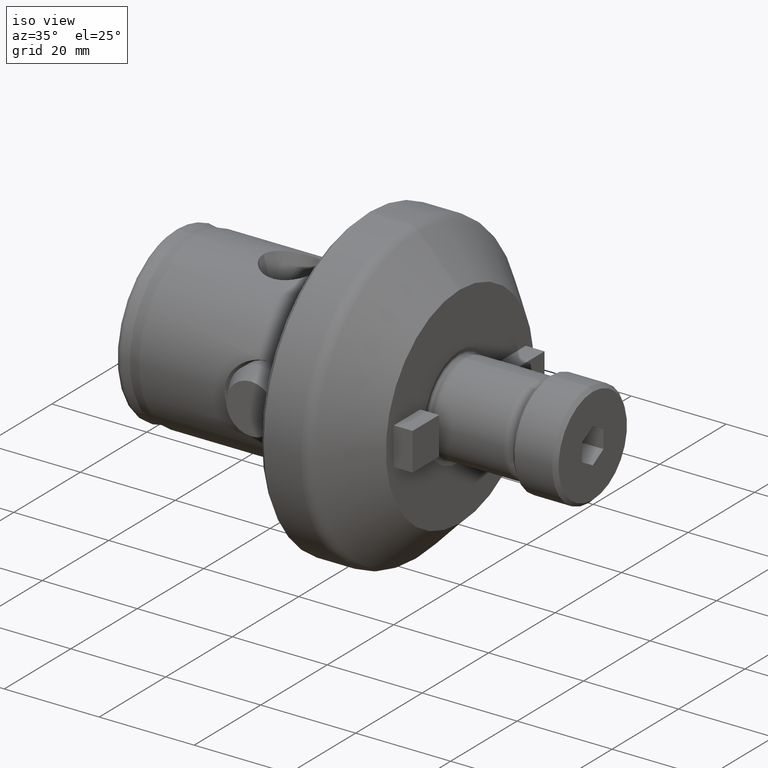
[diagram: clean part render]
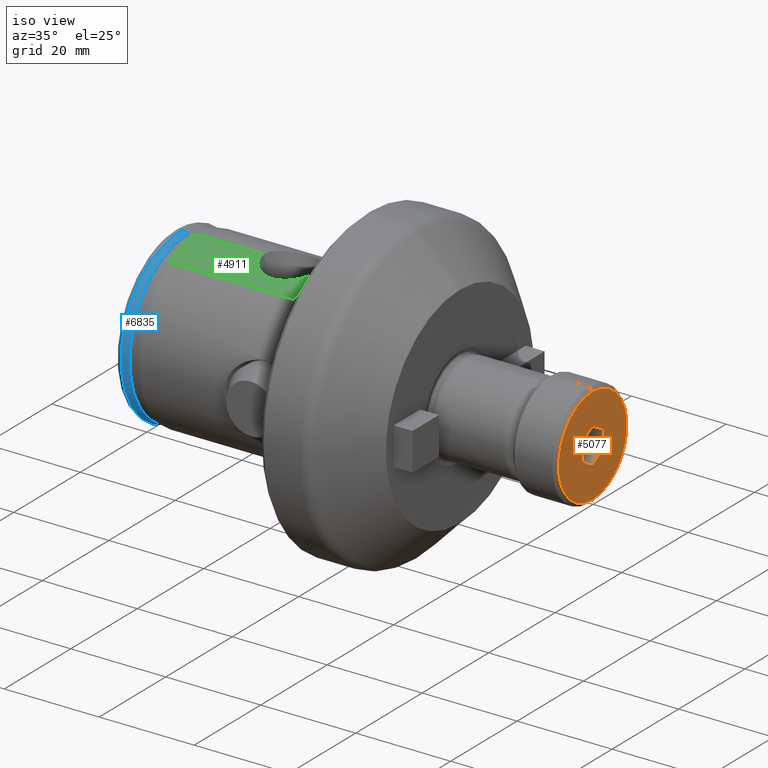
[diagram: same view with three faces highlighted in distinct colors, each labeled with its STEP entity id]
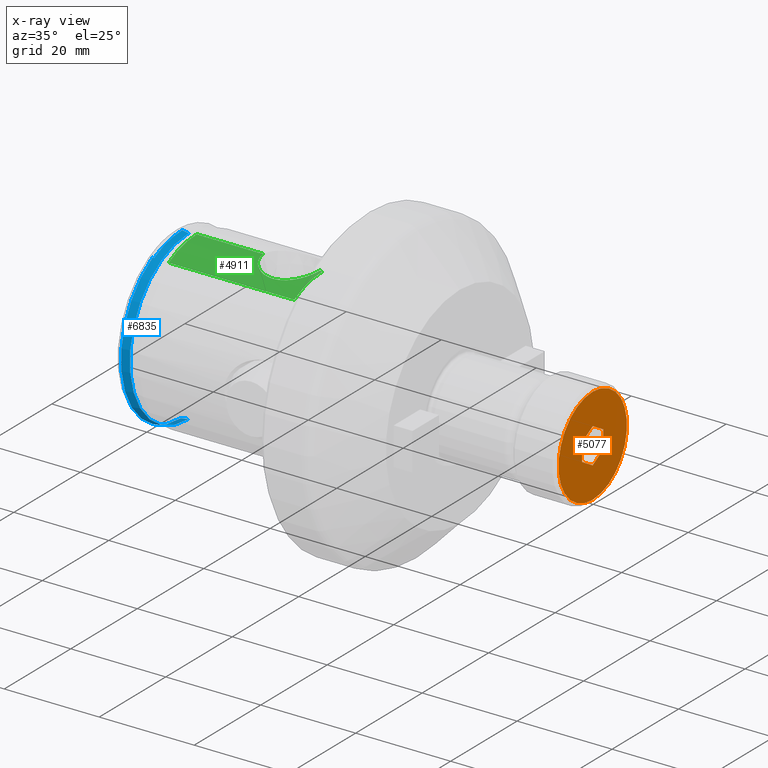
[diagram: x-ray of the same camera — body ghosted, the three highlighted faces saturated]
A machine part, iso view with three faces highlighted in distinct colors.
The next image is the same camera in x-ray (body ghosted, the three faces saturated) — at least one of them is partly hidden behind the body in this view.
Their STEP definitions:

[orange] entity #5077 — the highlighted planar face has unit normal (1, 0, -0).
#215 = ORIENTED_EDGE ( 'NONE', *, *, #6150, .F. ) ;
#280 = CARTESIAN_POINT ( 'NONE',  ( 0.0000000000000000000, -4.553649124439118600E-015, -3.739497693541208500 ) ) ;
#524 = CARTESIAN_POINT ( 'NONE',  ( 0.0000000000000000000, 3.238500000000001900, 1.869748846770605600 ) ) ;
#654 = LINE ( 'NONE', #280, #6795 ) ;
#693 = AXIS2_PLACEMENT_3D ( 'NONE', #1165, #5395, #1718 ) ;
#868 = LINE ( 'NONE', #6306, #7287 ) ;
#874 = DIRECTION ( 'NONE',  ( 0.0000000000000000000, -0.8660254037844384900, 0.5000000000000002200 ) ) ;
#937 = EDGE_LOOP ( 'NONE', ( #3235, #4430 ) ) ;
#981 = VECTOR ( 'NONE', #2906, 1000.000000000000000 ) ;
#1165 = CARTESIAN_POINT ( 'NONE',  ( 0.0000000000000000000, 0.0000000000000000000, 0.0000000000000000000 ) ) ;
#1718 = DIRECTION ( 'NONE',  ( -0.0000000000000000000, 8.326672684688664200E-016, 1.000000000000000000 ) ) ;
#1794 = LINE ( 'NONE', #524, #981 ) ;
#1819 = VERTEX_POINT ( 'NONE', #2546 ) ;
#2092 = VERTEX_POINT ( 'NONE', #5803 ) ;
#2184 = CARTESIAN_POINT ( 'NONE',  ( 0.0000000000000000000, 0.0000000000000000000, 0.0000000000000000000 ) ) ;
#2331 = CIRCLE ( 'NONE', #2741, 10.28700000000001100 ) ;
#2499 = LINE ( 'NONE', #6725, #2598 ) ;
#2546 = CARTESIAN_POINT ( 'NONE',  ( 0.0000000000000000000, -8.882894420025876500E-015, -10.28699999999999900 ) ) ;
#2598 = VECTOR ( 'NONE', #6669, 1000.000000000000000 ) ;
#2617 = DIRECTION ( 'NONE',  ( 0.0000000000000000000, 8.326672684688665200E-016, 1.000000000000000000 ) ) ;
#2741 = AXIS2_PLACEMENT_3D ( 'NONE', #2184, #5229, #6970 ) ;
#2906 = DIRECTION ( 'NONE',  ( 0.0000000000000000000, -9.992007221626401000E-016, -1.000000000000000000 ) ) ;
#2922 = DIRECTION ( 'NONE',  ( 0.0000000000000000000, -0.8660254037844386000, -0.5000000000000001100 ) ) ;
#3235 = ORIENTED_EDGE ( 'NONE', *, *, #4165, .T. ) ;
#3248 = EDGE_CURVE ( 'NONE', #6068, #2092, #2499, .T. ) ;
#3283 = VECTOR ( 'NONE', #2922, 1000.000000000000000 ) ;
#3441 = ORIENTED_EDGE ( 'NONE', *, *, #6021, .F. ) ;
#3474 = EDGE_CURVE ( 'NONE', #4946, #4737, #654, .T. ) ;
#3478 = ORIENTED_EDGE ( 'NONE', *, *, #5978, .F. ) ;
#3793 = VERTEX_POINT ( 'NONE', #7183 ) ;
#4040 = CARTESIAN_POINT ( 'NONE',  ( 0.0000000000000000000, 3.238499999999999300, -1.869748846770602500 ) ) ;
#4165 = EDGE_CURVE ( 'NONE', #1819, #3793, #5710, .T. ) ;
#4189 = CARTESIAN_POINT ( 'NONE',  ( 0.0000000000000000000, -4.553649124439118600E-015, -3.739497693541208500 ) ) ;
#4256 = CARTESIAN_POINT ( 'NONE',  ( 0.0000000000000000000, -3.238499999999997500, 1.869748846770603400 ) ) ;
#4430 = ORIENTED_EDGE ( 'NONE', *, *, #5966, .T. ) ;
#4459 = ORIENTED_EDGE ( 'NONE', *, *, #3474, .F. ) ;
#4737 = VERTEX_POINT ( 'NONE', #6845 ) ;
#4820 = DIRECTION ( 'NONE',  ( -0.0000000000000000000, 0.8660254037844384900, 0.5000000000000002200 ) ) ;
#4946 = VERTEX_POINT ( 'NONE', #4189 ) ;
#4951 = VECTOR ( 'NONE', #4820, 1000.000000000000000 ) ;
#5077 = ADVANCED_FACE ( 'NONE', ( #6357, #5256 ), #6549, .T. ) ;
#5229 = DIRECTION ( 'NONE',  ( -1.000000000000000000, 0.0000000000000000000, 0.0000000000000000000 ) ) ;
#5256 = FACE_OUTER_BOUND ( 'NONE', #937, .T. ) ;
#5394 = EDGE_LOOP ( 'NONE', ( #4459, #3441, #6597, #5931, #215, #3478 ) ) ;
#5395 = DIRECTION ( 'NONE',  ( -1.000000000000000000, 0.0000000000000000000, -0.0000000000000000000 ) ) ;
#5596 = CARTESIAN_POINT ( 'NONE',  ( 0.0000000000000000000, 0.0000000000000000000, 0.0000000000000000000 ) ) ;
#5703 = DIRECTION ( 'NONE',  ( -0.0000000000000000000, 1.054711873393897700E-015, 1.000000000000000000 ) ) ;
#5710 = CIRCLE ( 'NONE', #7048, 10.28700000000001100 ) ;
#5803 = CARTESIAN_POINT ( 'NONE',  ( 0.0000000000000000000, 3.238500000000001900, 1.869748846770605600 ) ) ;
#5900 = CARTESIAN_POINT ( 'NONE',  ( 0.0000000000000000000, 3.238499999999999300, -1.869748846770602500 ) ) ;
#5931 = ORIENTED_EDGE ( 'NONE', *, *, #3248, .F. ) ;
#5966 = EDGE_CURVE ( 'NONE', #3793, #1819, #2331, .T. ) ;
#5978 = EDGE_CURVE ( 'NONE', #4737, #6573, #868, .T. ) ;
#6021 = EDGE_CURVE ( 'NONE', #6468, #4946, #6918, .T. ) ;
#6068 = VERTEX_POINT ( 'NONE', #7622 ) ;
#6150 = EDGE_CURVE ( 'NONE', #6573, #6068, #6722, .T. ) ;
#6180 = DIRECTION ( 'NONE',  ( -1.000000000000000000, 0.0000000000000000000, 0.0000000000000000000 ) ) ;
#6306 = CARTESIAN_POINT ( 'NONE',  ( 0.0000000000000000000, -3.238500000000002400, -1.869748846770606500 ) ) ;
#6357 = FACE_BOUND ( 'NONE', #5394, .T. ) ;
#6468 = VERTEX_POINT ( 'NONE', #4040 ) ;
#6549 = PLANE ( 'NONE',  #693 ) ;
#6573 = VERTEX_POINT ( 'NONE', #7216 ) ;
#6597 = ORIENTED_EDGE ( 'NONE', *, *, #7474, .F. ) ;
#6669 = DIRECTION ( 'NONE',  ( 0.0000000000000000000, 0.8660254037844383700, -0.5000000000000004400 ) ) ;
#6722 = LINE ( 'NONE', #4256, #4951 ) ;
#6725 = CARTESIAN_POINT ( 'NONE',  ( 0.0000000000000000000, 5.204170427930421300E-015, 3.739497693541208500 ) ) ;
#6795 = VECTOR ( 'NONE', #874, 1000.000000000000100 ) ;
#6845 = CARTESIAN_POINT ( 'NONE',  ( 0.0000000000000000000, -3.238500000000002400, -1.869748846770606500 ) ) ;
#6918 = LINE ( 'NONE', #5900, #3283 ) ;
#6970 = DIRECTION ( 'NONE',  ( 0.0000000000000000000, 8.326672684688665200E-016, 1.000000000000000000 ) ) ;
#7048 = AXIS2_PLACEMENT_3D ( 'NONE', #5596, #6180, #2617 ) ;
#7183 = CARTESIAN_POINT ( 'NONE',  ( 0.0000000000000000000, 1.018934762535627500E-014, 10.28699999999999900 ) ) ;
#7216 = CARTESIAN_POINT ( 'NONE',  ( 0.0000000000000000000, -3.238499999999997500, 1.869748846770603400 ) ) ;
#7287 = VECTOR ( 'NONE', #5703, 1000.000000000000000 ) ;
#7474 = EDGE_CURVE ( 'NONE', #2092, #6468, #1794, .T. ) ;
#7622 = CARTESIAN_POINT ( 'NONE',  ( 0.0000000000000000000, 5.204170427930421300E-015, 3.739497693541208500 ) ) ;

[blue] entity #6835 — the highlighted conical surface has half-angle 10 deg.
#52 = VERTEX_POINT ( 'NONE', #6538 ) ;
#158 = CIRCLE ( 'NONE', #7397, 17.69401595690456800 ) ;
#296 = DIRECTION ( 'NONE',  ( -0.9848077530122081300, 2.126576849575768800E-017, -0.1736481776669301400 ) ) ;
#392 = VECTOR ( 'NONE', #2492, 1000.000000000000000 ) ;
#523 = DIRECTION ( 'NONE',  ( -1.000000000000000000, -0.0000000000000000000, -0.0000000000000000000 ) ) ;
#580 = CARTESIAN_POINT ( 'NONE',  ( 1.349386830662092200, -8.500000000000000000, 15.81422563385185700 ) ) ;
#697 = CARTESIAN_POINT ( 'NONE',  ( 1.464511676563653200, -5.815711355955602200, 17.02813089845806600 ) ) ;
#804 = AXIS2_PLACEMENT_3D ( 'NONE', #1608, #523, #2212 ) ;
#904 = VERTEX_POINT ( 'NONE', #1047 ) ;
#945 = LINE ( 'NONE', #4843, #392 ) ;
#1004 = EDGE_CURVE ( 'NONE', #5470, #52, #7237, .T. ) ;
#1047 = CARTESIAN_POINT ( 'NONE',  ( 2.822810404226113100, 2.185628119516886500E-015, 17.69401595690456800 ) ) ;
#1240 = CARTESIAN_POINT ( 'NONE',  ( 1.483487609574736700, -1.469049401911537700, 17.88525214269114000 ) ) ;
#1268 = CARTESIAN_POINT ( 'NONE',  ( 1.437254257962105500, -8.499999999999998200, 15.79663165262243400 ) ) ;
#1472 = CARTESIAN_POINT ( 'NONE',  ( 2.822810404226113100, 0.0000000000000000000, 0.0000000000000000000 ) ) ;
#1608 = CARTESIAN_POINT ( 'NONE',  ( 1.173648177666930300, 0.0000000000000000000, 0.0000000000000000000 ) ) ;
#1703 = FACE_OUTER_BOUND ( 'NONE', #3041, .T. ) ;
#1726 = EDGE_CURVE ( 'NONE', #904, #6947, #945, .T. ) ;
#2212 = DIRECTION ( 'NONE',  ( 0.0000000000000000000, 0.0000000000000000000, 1.000000000000000000 ) ) ;
#2492 = DIRECTION ( 'NONE',  ( -0.9848077530122081300, 0.0000000000000000000, 0.1736481776669301400 ) ) ;
#2511 = CARTESIAN_POINT ( 'NONE',  ( 1.437254257962105500, -8.499999999999998200, 15.79663165262243400 ) ) ;
#3003 = B_SPLINE_CURVE_WITH_KNOTS ( 'NONE', 3,
 ( #1268, #3642, #697, #4813, #5441, #6664, #7191, #1240, #4896, #6635 ),
 .UNSPECIFIED., .F., .F.,
 ( 4, 2, 2, 2, 4 ),
 ( 2.236843437138421300E-007, 0.004405040651324010200, 0.005506244893069084400, 0.006607449134814159400, 0.008809857618304311300 ),
 .UNSPECIFIED. ) ;
#3041 = EDGE_LOOP ( 'NONE', ( #7434, #3312, #7467, #4912, #3421, #7594 ) ) ;
#3312 = ORIENTED_EDGE ( 'NONE', *, *, #6923, .T. ) ;
#3400 = DIRECTION ( 'NONE',  ( 0.0000000000000000000, 0.0000000000000000000, 1.000000000000000000 ) ) ;
#3419 = CARTESIAN_POINT ( 'NONE',  ( 1.173648177666928100, -8.500000000000000000, 15.84939462291252400 ) ) ;
#3421 = ORIENTED_EDGE ( 'NONE', *, *, #7520, .F. ) ;
#3642 = CARTESIAN_POINT ( 'NONE',  ( 1.452818699485457700, -7.187189562487392700, 16.49992451043657100 ) ) ;
#3743 = VECTOR ( 'NONE', #296, 1000.000000000000000 ) ;
#4813 = CARTESIAN_POINT ( 'NONE',  ( 1.474444935576172200, -4.030470822135941800, 17.47681854715259700 ) ) ;
#4843 = CARTESIAN_POINT ( 'NONE',  ( 2.822810404226113100, 0.0000000000000000000, 17.69401595690456800 ) ) ;
#4896 = CARTESIAN_POINT ( 'NONE',  ( 1.484478390899108200, -0.7342083762370608100, 17.93000000000000000 ) ) ;
#4912 = ORIENTED_EDGE ( 'NONE', *, *, #6617, .F. ) ;
#5031 = B_SPLINE_CURVE_WITH_KNOTS ( 'NONE', 3,
 ( #3419, #7597, #580, #5981 ),
 .UNSPECIFIED., .F., .F.,
 ( 4, 4 ),
 ( 0.004841917233519000400, 0.005110751742366690000 ),
 .UNSPECIFIED. ) ;
#5081 = CARTESIAN_POINT ( 'NONE',  ( 2.822810404226113100, 2.166892000568537200E-015, -17.69401595690456800 ) ) ;
#5209 = CARTESIAN_POINT ( 'NONE',  ( 2.822810404226113100, 0.0000000000000000000, 0.0000000000000000000 ) ) ;
#5238 = CARTESIAN_POINT ( 'NONE',  ( 1.484478390899107900, 2.658396142433313900E-015, 17.93000000000000000 ) ) ;
#5441 = CARTESIAN_POINT ( 'NONE',  ( 1.476194086024367400, -3.669827121069565200, 17.55582548962316700 ) ) ;
#5470 = VERTEX_POINT ( 'NONE', #5852 ) ;
#5496 = CARTESIAN_POINT ( 'NONE',  ( 2.822810404226113100, 0.0000000000000000000, -17.69401595690456800 ) ) ;
#5659 = AXIS2_PLACEMENT_3D ( 'NONE', #1472, #7457, #6887 ) ;
#5690 = VERTEX_POINT ( 'NONE', #2511 ) ;
#5811 = EDGE_CURVE ( 'NONE', #6575, #5470, #7296, .T. ) ;
#5852 = CARTESIAN_POINT ( 'NONE',  ( 1.173648177666930300, 2.202503724800689100E-015, -17.98480775301219800 ) ) ;
#5981 = CARTESIAN_POINT ( 'NONE',  ( 1.437254257962105500, -8.499999999999998200, 15.79663165262243400 ) ) ;
#6286 = CONICAL_SURFACE ( 'NONE', #5659, 17.69401595690456800, 0.1745329251994327000 ) ;
#6538 = CARTESIAN_POINT ( 'NONE',  ( 1.173648177666928100, -8.500000000000000000, 15.84939462291252400 ) ) ;
#6575 = VERTEX_POINT ( 'NONE', #5496 ) ;
#6617 = EDGE_CURVE ( 'NONE', #5690, #6947, #3003, .T. ) ;
#6635 = CARTESIAN_POINT ( 'NONE',  ( 1.484478390899107900, 2.658396142433313900E-015, 17.93000000000000000 ) ) ;
#6664 = CARTESIAN_POINT ( 'NONE',  ( 1.479207712177443400, -2.941203264703212000, 17.69194467520059200 ) ) ;
#6835 = ADVANCED_FACE ( 'NONE', ( #1703 ), #6286, .T. ) ;
#6887 = DIRECTION ( 'NONE',  ( 0.0000000000000000000, 0.0000000000000000000, 1.000000000000000000 ) ) ;
#6923 = EDGE_CURVE ( 'NONE', #6575, #904, #158, .T. ) ;
#6947 = VERTEX_POINT ( 'NONE', #5238 ) ;
#7191 = CARTESIAN_POINT ( 'NONE',  ( 1.480473335849074500, -2.572286774176430600, 17.74910876459918200 ) ) ;
#7237 = CIRCLE ( 'NONE', #804, 17.98480775301219800 ) ;
#7296 = LINE ( 'NONE', #5081, #3743 ) ;
#7397 = AXIS2_PLACEMENT_3D ( 'NONE', #5209, #7578, #3400 ) ;
#7434 = ORIENTED_EDGE ( 'NONE', *, *, #5811, .F. ) ;
#7457 = DIRECTION ( 'NONE',  ( -1.000000000000000000, -0.0000000000000000000, -0.0000000000000000000 ) ) ;
#7467 = ORIENTED_EDGE ( 'NONE', *, *, #1726, .T. ) ;
#7520 = EDGE_CURVE ( 'NONE', #52, #5690, #5031, .T. ) ;
#7578 = DIRECTION ( 'NONE',  ( -1.000000000000000000, -0.0000000000000000000, -0.0000000000000000000 ) ) ;
#7594 = ORIENTED_EDGE ( 'NONE', *, *, #1004, .F. ) ;
#7597 = CARTESIAN_POINT ( 'NONE',  ( 1.261518132598713700, -8.500000000000000000, 15.83181326983289200 ) ) ;

[green] entity #4911 — the highlighted cylindrical surface (partial cylindrical patch) has radius 18 mm, axis along (-1, 0, 0).
#75 = ORIENTED_EDGE ( 'NONE', *, *, #5770, .T. ) ;
#105 = VECTOR ( 'NONE', #3022, 1000.000000000000000 ) ;
#316 = CARTESIAN_POINT ( 'NONE',  ( 18.61557294335919700, -0.7615478417170320500, 17.91778346280447900 ) ) ;
#336 = CARTESIAN_POINT ( 'NONE',  ( 21.91104107646931700, -5.120805884859581900, 17.18683709147466500 ) ) ;
#368 = DIRECTION ( 'NONE',  ( -1.000000000000000000, 0.0000000000000000000, 0.0000000000000000000 ) ) ;
#382 = CARTESIAN_POINT ( 'NONE',  ( 28.06765884811124300, -4.537289672149269900, 17.34916469177915800 ) ) ;
#551 = EDGE_CURVE ( 'NONE', #7321, #7047, #4077, .T. ) ;
#681 = CARTESIAN_POINT ( 'NONE',  ( 31.00000000000000000, 0.0000000000000000000, 17.93000000000000000 ) ) ;
#699 = CYLINDRICAL_SURFACE ( 'NONE', #6967, 18.00000000000000400 ) ;
#715 = DIRECTION ( 'NONE',  ( 0.0000000000000000000, 0.0000000000000000000, 1.000000000000000000 ) ) ;
#758 = VERTEX_POINT ( 'NONE', #6128 ) ;
#925 = CARTESIAN_POINT ( 'NONE',  ( 18.78506986485922100, -1.509078302526124100, 17.86755934289542200 ) ) ;
#938 = LINE ( 'NONE', #681, #105 ) ;
#1062 = CARTESIAN_POINT ( 'NONE',  ( 29.61198953805596900, -2.894847298418375300, 17.69848338928661100 ) ) ;
#1210 = DIRECTION ( 'NONE',  ( -1.000000000000000000, 0.0000000000000000000, 0.0000000000000000000 ) ) ;
#1277 = VERTEX_POINT ( 'NONE', #7386 ) ;
#1406 = EDGE_LOOP ( 'NONE', ( #2510, #5289, #3200, #75, #1692, #2969 ) ) ;
#1424 = CARTESIAN_POINT ( 'NONE',  ( 18.57554470225370100, 7.387272118025272300E-015, 17.93000000000003200 ) ) ;
#1458 = CARTESIAN_POINT ( 'NONE',  ( 24.11898480793086800, -5.669398008010491100, 17.01385997746745100 ) ) ;
#1528 = CARTESIAN_POINT ( 'NONE',  ( 18.90338198084887700, -1.872716497970736500, 17.83324790146408400 ) ) ;
#1548 = CARTESIAN_POINT ( 'NONE',  ( 30.02971255283868900, -2.046933455186017400, 17.81407891603381400 ) ) ;
#1692 = ORIENTED_EDGE ( 'NONE', *, *, #2940, .T. ) ;
#1853 = VERTEX_POINT ( 'NONE', #1424 ) ;
#2056 = CARTESIAN_POINT ( 'NONE',  ( 18.73492686664312500, -1.322296669584288600, 17.88234270986931000 ) ) ;
#2075 = CARTESIAN_POINT ( 'NONE',  ( 19.39192034899708600, -2.901195590925284200, 17.69744489833552200 ) ) ;
#2106 = CARTESIAN_POINT ( 'NONE',  ( 22.99088402668141000, -5.503021733578009400, 17.06832382586234000 ) ) ;
#2127 = CARTESIAN_POINT ( 'NONE',  ( 27.91080199915923300, -4.646718315353848700, 17.32019603531960800 ) ) ;
#2136 = CARTESIAN_POINT ( 'NONE',  ( 4.503165590156450900, -1.466782719062482000, 17.88530954530814300 ) ) ;
#2155 = CARTESIAN_POINT ( 'NONE',  ( 28.36779536209320800, -4.305483147489614900, 17.40790350685690400 ) ) ;
#2177 = CARTESIAN_POINT ( 'NONE',  ( 29.17004880996611900, -3.514525437097586000, 17.58636581486996400 ) ) ;
#2225 = CARTESIAN_POINT ( 'NONE',  ( 30.21508621675755900, -1.508417022360140100, 17.86760598744768200 ) ) ;
#2234 = VECTOR ( 'NONE', #368, 1000.000000000000000 ) ;
#2333 = CARTESIAN_POINT ( 'NONE',  ( 31.00000000000000000, 0.0000000000000000000, -0.06999999999999996500 ) ) ;
#2510 = ORIENTED_EDGE ( 'NONE', *, *, #551, .T. ) ;
#2532 = LINE ( 'NONE', #6235, #5615 ) ;
#2682 = CARTESIAN_POINT ( 'NONE',  ( 18.57554470225370100, 7.387272118025272300E-015, 17.93000000000003200 ) ) ;
#2731 = CARTESIAN_POINT ( 'NONE',  ( 18.57554470225379700, -0.3831136838248288500, 17.93000000000000000 ) ) ;
#2808 = EDGE_CURVE ( 'NONE', #7047, #1277, #938, .T. ) ;
#2940 = EDGE_CURVE ( 'NONE', #6594, #758, #4725, .T. ) ;
#2969 = ORIENTED_EDGE ( 'NONE', *, *, #5890, .F. ) ;
#2986 = DIRECTION ( 'NONE',  ( 0.0000000000000000000, 0.0000000000000000000, -1.000000000000000000 ) ) ;
#3022 = DIRECTION ( 'NONE',  ( -1.000000000000000000, 0.0000000000000000000, 0.0000000000000000000 ) ) ;
#3200 = ORIENTED_EDGE ( 'NONE', *, *, #6465, .F. ) ;
#3236 = CARTESIAN_POINT ( 'NONE',  ( 18.97153989019681900, -2.050110156723244300, 17.81372150429449500 ) ) ;
#3265 = CARTESIAN_POINT ( 'NONE',  ( 27.09328471493246900, -5.118611019039359900, 17.18748347959928300 ) ) ;
#3291 = CARTESIAN_POINT ( 'NONE',  ( 20.94034946229247400, -4.553824916090392500, 17.34565856833051700 ) ) ;
#3315 = CARTESIAN_POINT ( 'NONE',  ( 26.01419118754803600, -5.501786752466304400, 17.06872214293657200 ) ) ;
#3335 = CARTESIAN_POINT ( 'NONE',  ( 19.20209450050450100, -2.569569579887862200, 17.74906558059581500 ) ) ;
#3339 = CARTESIAN_POINT ( 'NONE',  ( 4.508174742434703400, -2.931655298299230300, 17.70498212726888500 ) ) ;
#3410 = CARTESIAN_POINT ( 'NONE',  ( 28.51121673220889000, -4.183164077528351400, 17.43767209451187500 ) ) ;
#3462 = CARTESIAN_POINT ( 'NONE',  ( 30.42445529774621000, -0.3812456403072552700, 17.93000000000000300 ) ) ;
#3835 = CARTESIAN_POINT ( 'NONE',  ( 20.64195123594208800, -4.325654087729322600, 17.40455638766276500 ) ) ;
#3885 = CARTESIAN_POINT ( 'NONE',  ( 21.57490829159469200, -4.951432438418796900, 17.23681373167354300 ) ) ;
#3891 = CARTESIAN_POINT ( 'NONE',  ( 4.511979581276668800, -3.666865337209434600, 17.56800739893154200 ) ) ;
#4077 = CIRCLE ( 'NONE', #7132, 18.00000000000000400 ) ;
#4169 = DIRECTION ( 'NONE',  ( -1.000000000000000000, -0.0000000000000000000, -0.0000000000000000000 ) ) ;
#4254 = CARTESIAN_POINT ( 'NONE',  ( 31.00000000000000000, 0.0000000000000000000, 17.93000000000000000 ) ) ;
#4441 = CARTESIAN_POINT ( 'NONE',  ( 20.08494431174515100, -3.805031565792130500, 17.52525899257014800 ) ) ;
#4546 = CARTESIAN_POINT ( 'NONE',  ( 4.561173011721243700, -8.499999999999998200, 15.79663165262243400 ) ) ;
#4548 = CARTESIAN_POINT ( 'NONE',  ( 31.00000000000000000, -8.499999999999998200, 15.79663165262243400 ) ) ;
#4725 = B_SPLINE_CURVE_WITH_KNOTS ( 'NONE', 3,
 ( #6327, #5154, #2136, #3339, #3891, #6280, #6895, #4546 ),
 .UNSPECIFIED., .F., .F.,
 ( 4, 2, 2, 4 ),
 ( 0.008809959860789792800, 0.01101086519072195400, 0.01321177052065411500, 0.01761358118051843700 ),
 .UNSPECIFIED. ) ;
#4861 = CARTESIAN_POINT ( 'NONE',  ( 31.00000000000000000, 0.0000000000000000000, -0.06999999999999996500 ) ) ;
#4911 = ADVANCED_FACE ( 'NONE', ( #6083 ), #699, .T. ) ;
#5015 = CARTESIAN_POINT ( 'NONE',  ( 23.73864113217325000, -5.634102640128216600, 17.02553254342923600 ) ) ;
#5044 = CARTESIAN_POINT ( 'NONE',  ( 22.62338941257609900, -5.398507192310130900, 17.10198880172835700 ) ) ;
#5154 = CARTESIAN_POINT ( 'NONE',  ( 4.501924119433152100, -0.7337060415290779200, 17.93000000000000000 ) ) ;
#5269 = CARTESIAN_POINT ( 'NONE',  ( 31.00000000000000000, -8.499999999999998200, 15.79663165262243400 ) ) ;
#5289 = ORIENTED_EDGE ( 'NONE', *, *, #2808, .T. ) ;
#5615 = VECTOR ( 'NONE', #5625, 1000.000000000000000 ) ;
#5625 = DIRECTION ( 'NONE',  ( -1.000000000000000000, 0.0000000000000000000, 0.0000000000000000000 ) ) ;
#5637 = CARTESIAN_POINT ( 'NONE',  ( 24.88821135867466700, -5.677932562585730200, 17.01101524758219300 ) ) ;
#5717 = CARTESIAN_POINT ( 'NONE',  ( 27.43017621194513100, -4.948965417227857000, 17.23755263737323800 ) ) ;
#5770 = EDGE_CURVE ( 'NONE', #1853, #6594, #2532, .T. ) ;
#5890 = EDGE_CURVE ( 'NONE', #7321, #758, #7663, .T. ) ;
#6083 = FACE_OUTER_BOUND ( 'NONE', #1406, .T. ) ;
#6128 = CARTESIAN_POINT ( 'NONE',  ( 4.561173011721243700, -8.499999999999998200, 15.79663165262243400 ) ) ;
#6235 = CARTESIAN_POINT ( 'NONE',  ( 31.00000000000000000, 0.0000000000000000000, 17.93000000000000000 ) ) ;
#6273 = CARTESIAN_POINT ( 'NONE',  ( 24.31210376769512700, -5.678318216710274600, 17.01088704511940700 ) ) ;
#6280 = CARTESIAN_POINT ( 'NONE',  ( 4.526961478556947000, -5.815333669717913900, 17.02861748603704200 ) ) ;
#6327 = CARTESIAN_POINT ( 'NONE',  ( 4.501924119433152100, 1.317146921704914900E-015, 17.93000000000000000 ) ) ;
#6372 = CARTESIAN_POINT ( 'NONE',  ( 30.26519079791910400, -1.321911464954059300, 17.88237726613494900 ) ) ;
#6465 = EDGE_CURVE ( 'NONE', #1853, #1277, #7513, .T. ) ;
#6576 = CARTESIAN_POINT ( 'NONE',  ( 4.501924119433152100, 1.317146921704914900E-015, 17.93000000000000000 ) ) ;
#6594 = VERTEX_POINT ( 'NONE', #6576 ) ;
#6840 = CARTESIAN_POINT ( 'NONE',  ( 26.38627019785123900, -5.395240042650292400, 17.10301079295812000 ) ) ;
#6866 = CARTESIAN_POINT ( 'NONE',  ( 19.83483833083843000, -3.520494726701619100, 17.58517348970152100 ) ) ;
#6892 = CARTESIAN_POINT ( 'NONE',  ( 25.26696886245773400, -5.642236274775491700, 17.02299926818012200 ) ) ;
#6895 = CARTESIAN_POINT ( 'NONE',  ( 4.541659314675777100, -7.188126997925748700, 16.49942231177207900 ) ) ;
#6936 = CARTESIAN_POINT ( 'NONE',  ( 29.80049634298833200, -2.564430172086267700, 17.74977998943963100 ) ) ;
#6967 = AXIS2_PLACEMENT_3D ( 'NONE', #4861, #1210, #715 ) ;
#7008 = CARTESIAN_POINT ( 'NONE',  ( 28.92198423547165800, -3.797120882136647800, 17.52692156260112500 ) ) ;
#7047 = VERTEX_POINT ( 'NONE', #4254 ) ;
#7132 = AXIS2_PLACEMENT_3D ( 'NONE', #2333, #4169, #2986 ) ;
#7321 = VERTEX_POINT ( 'NONE', #5269 ) ;
#7386 = CARTESIAN_POINT ( 'NONE',  ( 30.42445529774620600, -1.071667539742744500E-023, 17.93000000000000000 ) ) ;
#7513 = B_SPLINE_CURVE_WITH_KNOTS ( 'NONE', 3,
 ( #2682, #2731, #316, #2056, #925, #1528, #3236, #3335, #2075, #6866, #4441, #3835, #3291, #3885, #336, #5044, #2106, #7519, #5015, #1458, #6273, #5637, #6892, #3315, #6840, #3265, #5717, #2127, #382, #2155, #3410, #7008, #2177, #1062, #6936, #1548, #7636, #2225, #6372, #7611, #3462, #7564 ),
 .UNSPECIFIED., .F., .F.,
 ( 4, 2, 2, 2, 2, 2, 2, 2, 2, 2, 2, 2, 2, 2, 2, 2, 2, 2, 2, 2, 4 ),
 ( 0.03175598414755257500, 0.03289099882672463100, 0.03345850616631065900, 0.03402601350589669300, 0.03516102818506874900, 0.03629604286424080500, 0.03743105754341286000, 0.03856607222258492300, 0.03970108690175697800, 0.04026859424134301300, 0.04083610158092904800, 0.04197111626010112400, 0.04310613093927320000, 0.04424114561844527700, 0.04480865295803131100, 0.04537616029761735300, 0.04651117497678943600, 0.04764618965596152000, 0.04821369699554756100, 0.04878120433513361000, 0.04991621901430568600 ),
 .UNSPECIFIED. ) ;
#7519 = CARTESIAN_POINT ( 'NONE',  ( 23.55033296111776800, -5.607752895763297800, 17.03422332057632400 ) ) ;
#7564 = CARTESIAN_POINT ( 'NONE',  ( 30.42445529774620600, -1.071667539742744500E-023, 17.93000000000000000 ) ) ;
#7611 = CARTESIAN_POINT ( 'NONE',  ( 30.38481521319513900, -0.7593876761666554800, 17.91789949006137300 ) ) ;
#7636 = CARTESIAN_POINT ( 'NONE',  ( 30.09746334228502800, -1.870298372181086000, 17.83349168383870200 ) ) ;
#7663 = LINE ( 'NONE', #4548, #2234 ) ;